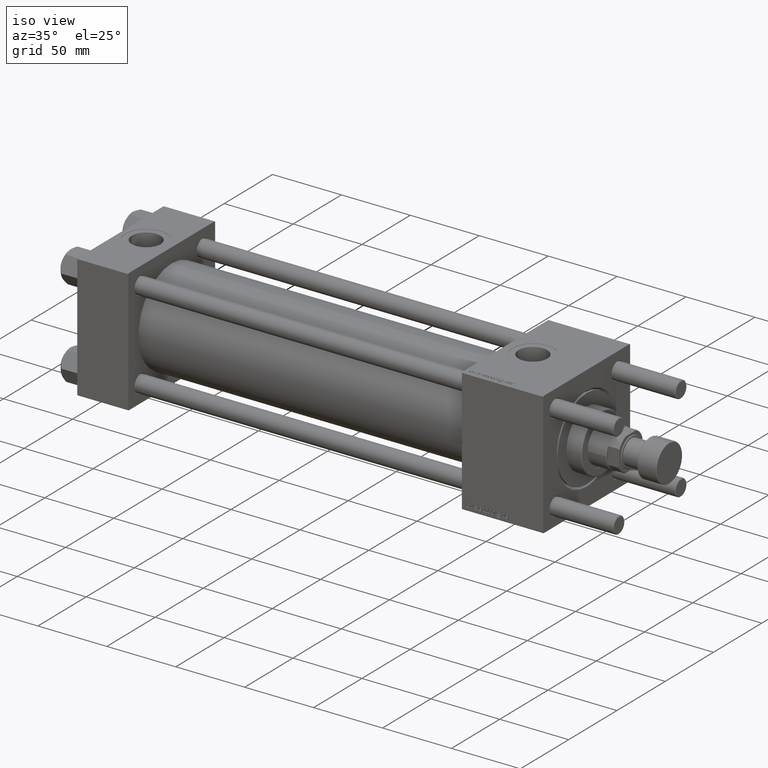
[diagram: clean part render]
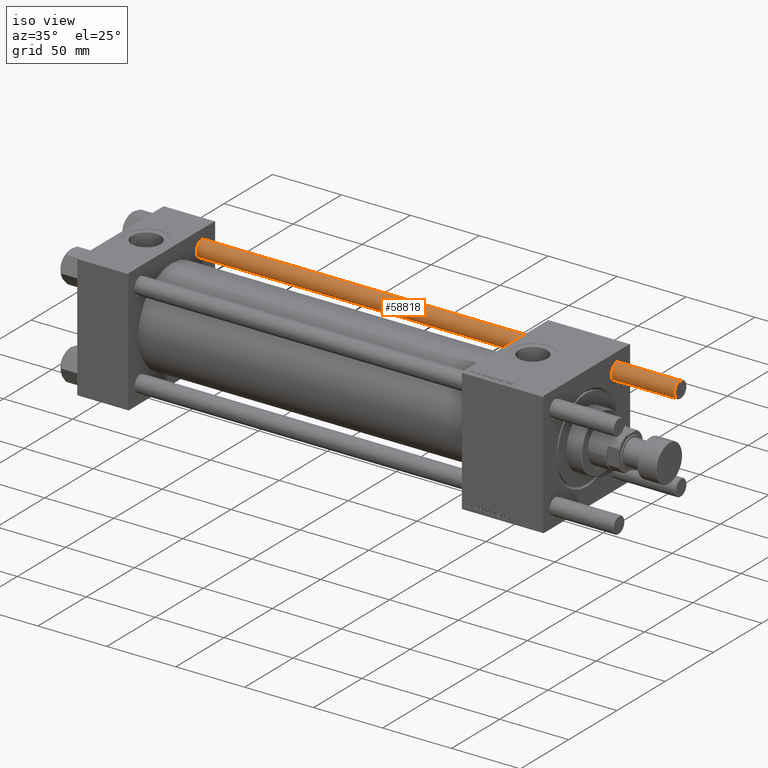
[diagram: same view with one face highlighted and labeled with its STEP entity id]
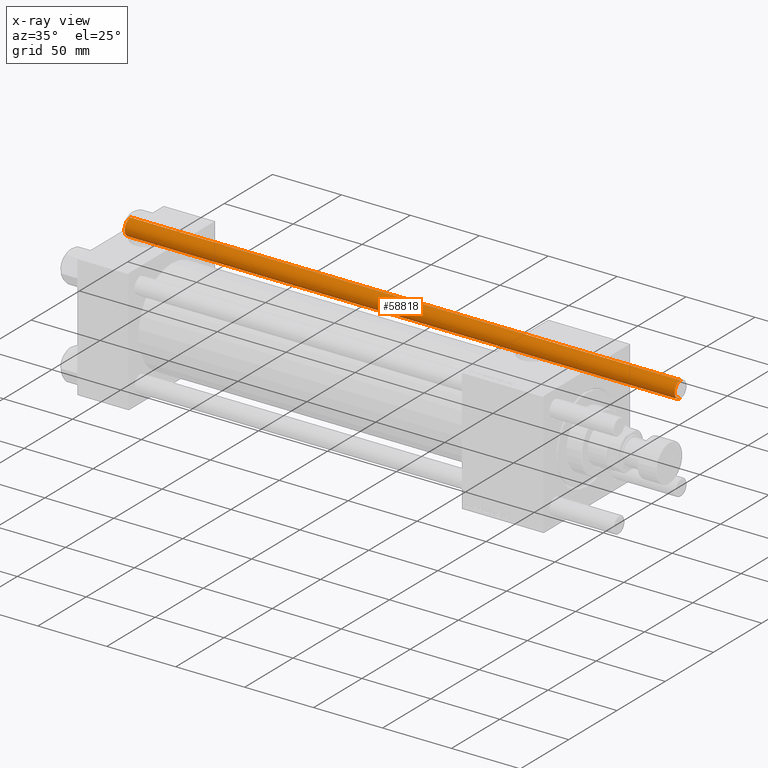
[diagram: x-ray of the same camera — body ghosted, the highlighted face saturated]
A machine part, iso view. The second image highlights one B-rep face of the part: STEP entity #58818.
The next image is the same camera in x-ray: the body ghosted, the highlighted face saturated — about 0% of this face is hidden behind the body in this view.
In plain terms, the highlighted cylindrical surface (edge-blend (fillet) strip) has radius 6 mm, axis along (1, -0, -0).
Its self-contained STEP definition (entity closure, byte-faithful):
#3181 = CARTESIAN_POINT ( 'NONE',  ( 6.000000000000000888, 7.347880794884120722E-16, 399.5000000000000000 ) ) ;
#3347 = VECTOR ( 'NONE', #26799, 1000.000000000000000 ) ;
#3563 = AXIS2_PLACEMENT_3D ( 'NONE', #29368, #33257, #19164 ) ;
#4201 = EDGE_LOOP ( 'NONE', ( #15239, #50931, #47863, #24492 ) ) ;
#5552 = DIRECTION ( 'NONE',  ( 1.000000000000000000, 0.000000000000000000, 0.000000000000000000 ) ) ;
#7623 = CIRCLE ( 'NONE', #30560, 6.000000000000000888 ) ;
#8432 = EDGE_CURVE ( 'NONE', #10572, #45360, #16185, .T. ) ;
#10572 = VERTEX_POINT ( 'NONE', #33450 ) ;
#15239 = ORIENTED_EDGE ( 'NONE', *, *, #21700, .F. ) ;
#16185 = LINE ( 'NONE', #53059, #41413 ) ;
#18241 = AXIS2_PLACEMENT_3D ( 'NONE', #56890, #20596, #57180 ) ;
#19164 = DIRECTION ( 'NONE',  ( 1.000000000000000000, 0.000000000000000000, 0.000000000000000000 ) ) ;
#19924 = DIRECTION ( 'NONE',  ( -0.000000000000000000, -0.000000000000000000, 1.000000000000000000 ) ) ;
#20086 = DIRECTION ( 'NONE',  ( -0.000000000000000000, -0.000000000000000000, -1.000000000000000000 ) ) ;
#20596 = DIRECTION ( 'NONE',  ( -0.000000000000000000, -0.000000000000000000, -1.000000000000000000 ) ) ;
#20798 = CIRCLE ( 'NONE', #3563, 6.000000000000000888 ) ;
#21700 = EDGE_CURVE ( 'NONE', #28284, #22761, #48714, .T. ) ;
#22761 = VERTEX_POINT ( 'NONE', #55652 ) ;
#24492 = ORIENTED_EDGE ( 'NONE', *, *, #43276, .T. ) ;
#26799 = DIRECTION ( 'NONE',  ( -0.000000000000000000, -0.000000000000000000, -1.000000000000000000 ) ) ;
#28284 = VERTEX_POINT ( 'NONE', #3181 ) ;
#29368 = CARTESIAN_POINT ( 'NONE',  ( 0.000000000000000000, 0.000000000000000000, 399.5000000000000000 ) ) ;
#30560 = AXIS2_PLACEMENT_3D ( 'NONE', #33410, #19924, #5552 ) ;
#33257 = DIRECTION ( 'NONE',  ( 0.000000000000000000, 0.000000000000000000, -1.000000000000000000 ) ) ;
#33410 = CARTESIAN_POINT ( 'NONE',  ( 0.000000000000000000, 0.000000000000000000, 0.5000000000000004441 ) ) ;
#33450 = CARTESIAN_POINT ( 'NONE',  ( -6.000000000000000888, 0.000000000000000000, 399.5000000000000000 ) ) ;
#35624 = CARTESIAN_POINT ( 'NONE',  ( -6.000000000000000888, 0.000000000000000000, 0.5000000000000004441 ) ) ;
#41413 = VECTOR ( 'NONE', #20086, 1000.000000000000000 ) ;
#43276 = EDGE_CURVE ( 'NONE', #45360, #22761, #7623, .T. ) ;
#44497 = CARTESIAN_POINT ( 'NONE',  ( 6.000000000000000888, 7.347880794884120722E-16, 400.0000000000000000 ) ) ;
#45360 = VERTEX_POINT ( 'NONE', #35624 ) ;
#47863 = ORIENTED_EDGE ( 'NONE', *, *, #8432, .T. ) ;
#48115 = EDGE_CURVE ( 'NONE', #28284, #10572, #20798, .T. ) ;
#48714 = LINE ( 'NONE', #44497, #3347 ) ;
#50931 = ORIENTED_EDGE ( 'NONE', *, *, #48115, .T. ) ;
#52975 = FACE_OUTER_BOUND ( 'NONE', #4201, .T. ) ;
#53059 = CARTESIAN_POINT ( 'NONE',  ( -6.000000000000000888, 0.000000000000000000, 400.0000000000000000 ) ) ;
#53264 = CYLINDRICAL_SURFACE ( 'NONE', #18241, 6.000000000000000888 ) ;
#55652 = CARTESIAN_POINT ( 'NONE',  ( 6.000000000000000888, 7.347880794884120722E-16, 0.5000000000000004441 ) ) ;
#56890 = CARTESIAN_POINT ( 'NONE',  ( 0.000000000000000000, 0.000000000000000000, 400.0000000000000000 ) ) ;
#57180 = DIRECTION ( 'NONE',  ( -1.000000000000000000, 0.000000000000000000, 0.000000000000000000 ) ) ;
#58818 = ADVANCED_FACE ( 'NONE', ( #52975 ), #53264, .T. ) ;